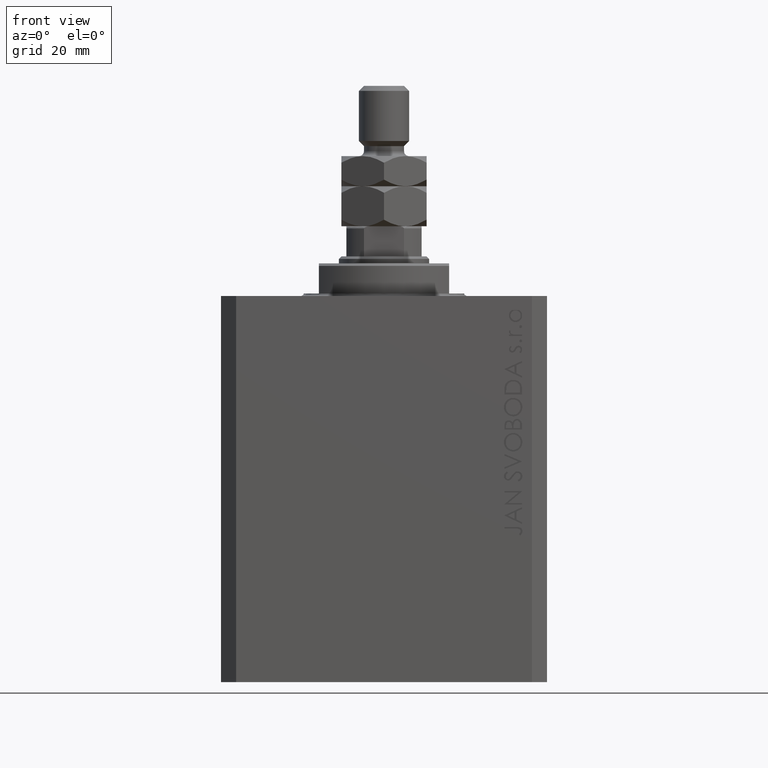
[diagram: clean part render]
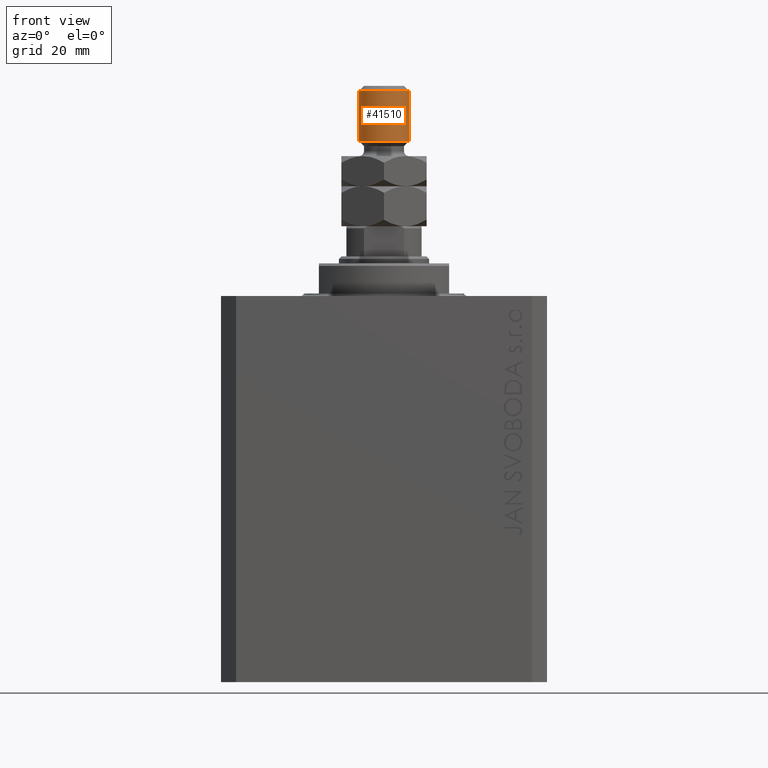
[diagram: same view with one face highlighted and labeled with its STEP entity id]
A machine part, front view. The second image highlights one B-rep face of the part: STEP entity #41510.
In plain terms, the highlighted cylindrical surface (edge-blend (fillet) strip) has radius 5 mm, axis along (-0, -0, -1).
Its self-contained STEP definition (entity closure, byte-faithful):
#1639 = VERTEX_POINT ( 'NONE', #28042 ) ;
#1746 = DIRECTION ( 'NONE',  ( -0.000000000000000000, -0.000000000000000000, 1.000000000000000000 ) ) ;
#3758 = FACE_OUTER_BOUND ( 'NONE', #26403, .T. ) ;
#8699 = ORIENTED_EDGE ( 'NONE', *, *, #22312, .F. ) ;
#9422 = CARTESIAN_POINT ( 'NONE',  ( 0.000000000000000000, 0.000000000000000000, 17.00000000000000355 ) ) ;
#12246 = EDGE_CURVE ( 'NONE', #15777, #42974, #27977, .T. ) ;
#13790 = CIRCLE ( 'NONE', #39007, 5.000000000000000000 ) ;
#14126 = DIRECTION ( 'NONE',  ( -1.000000000000000000, 0.000000000000000000, 0.000000000000000000 ) ) ;
#14131 = ORIENTED_EDGE ( 'NONE', *, *, #12246, .T. ) ;
#14609 = CARTESIAN_POINT ( 'NONE',  ( 0.000000000000000000, 0.000000000000000000, 28.00000000000000000 ) ) ;
#15777 = VERTEX_POINT ( 'NONE', #19440 ) ;
#16387 = DIRECTION ( 'NONE',  ( -0.000000000000000000, -0.000000000000000000, -1.000000000000000000 ) ) ;
#17972 = ORIENTED_EDGE ( 'NONE', *, *, #31573, .T. ) ;
#18859 = EDGE_CURVE ( 'NONE', #22096, #15777, #13790, .T. ) ;
#19440 = CARTESIAN_POINT ( 'NONE',  ( -5.000000000000000000, 0.000000000000000000, 26.99999999999998934 ) ) ;
#21664 = AXIS2_PLACEMENT_3D ( 'NONE', #9422, #1746, #42724 ) ;
#22015 = CYLINDRICAL_SURFACE ( 'NONE', #29885, 5.000000000000000000 ) ;
#22096 = VERTEX_POINT ( 'NONE', #27671 ) ;
#22234 = LINE ( 'NONE', #41244, #34124 ) ;
#22312 = EDGE_CURVE ( 'NONE', #22096, #1639, #22234, .T. ) ;
#22379 = ORIENTED_EDGE ( 'NONE', *, *, #18859, .T. ) ;
#22484 = DIRECTION ( 'NONE',  ( -0.000000000000000000, -0.000000000000000000, -1.000000000000000000 ) ) ;
#24278 = CARTESIAN_POINT ( 'NONE',  ( -5.000000000000000000, 0.000000000000000000, 28.00000000000000000 ) ) ;
#25723 = DIRECTION ( 'NONE',  ( -0.000000000000000000, -0.000000000000000000, -1.000000000000000000 ) ) ;
#26403 = EDGE_LOOP ( 'NONE', ( #8699, #22379, #14131, #17972 ) ) ;
#27279 = CARTESIAN_POINT ( 'NONE',  ( 0.000000000000000000, 0.000000000000000000, 26.99999999999998934 ) ) ;
#27671 = CARTESIAN_POINT ( 'NONE',  ( 5.000000000000000000, 6.123233995736766282E-16, 26.99999999999998934 ) ) ;
#27977 = LINE ( 'NONE', #24278, #40465 ) ;
#28042 = CARTESIAN_POINT ( 'NONE',  ( 5.000000000000000000, 6.123233995736766282E-16, 17.00000000000000355 ) ) ;
#29885 = AXIS2_PLACEMENT_3D ( 'NONE', #14609, #25723, #14126 ) ;
#31573 = EDGE_CURVE ( 'NONE', #42974, #1639, #36637, .T. ) ;
#31948 = DIRECTION ( 'NONE',  ( 1.000000000000000000, 0.000000000000000000, 0.000000000000000000 ) ) ;
#34124 = VECTOR ( 'NONE', #22484, 1000.000000000000000 ) ;
#36289 = CARTESIAN_POINT ( 'NONE',  ( -5.000000000000000000, 0.000000000000000000, 17.00000000000000355 ) ) ;
#36637 = CIRCLE ( 'NONE', #21664, 5.000000000000000000 ) ;
#39007 = AXIS2_PLACEMENT_3D ( 'NONE', #27279, #42580, #31948 ) ;
#40465 = VECTOR ( 'NONE', #16387, 1000.000000000000000 ) ;
#41244 = CARTESIAN_POINT ( 'NONE',  ( 5.000000000000000000, 6.123233995736766282E-16, 28.00000000000000000 ) ) ;
#41510 = ADVANCED_FACE ( 'NONE', ( #3758 ), #22015, .T. ) ;
#42580 = DIRECTION ( 'NONE',  ( 0.000000000000000000, 0.000000000000000000, -1.000000000000000000 ) ) ;
#42724 = DIRECTION ( 'NONE',  ( 1.000000000000000000, 0.000000000000000000, 0.000000000000000000 ) ) ;
#42974 = VERTEX_POINT ( 'NONE', #36289 ) ;